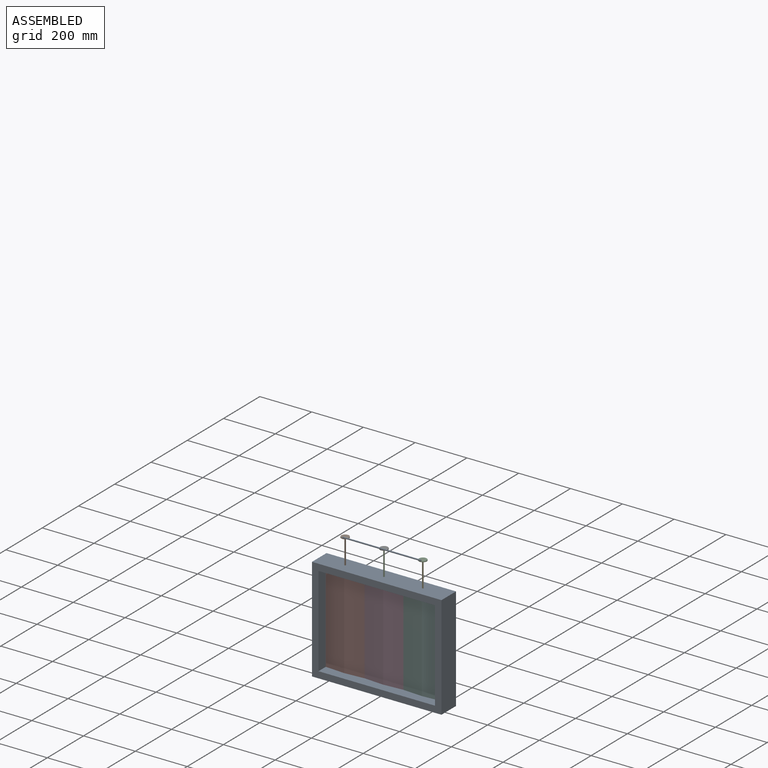
[diagram: assembled view]
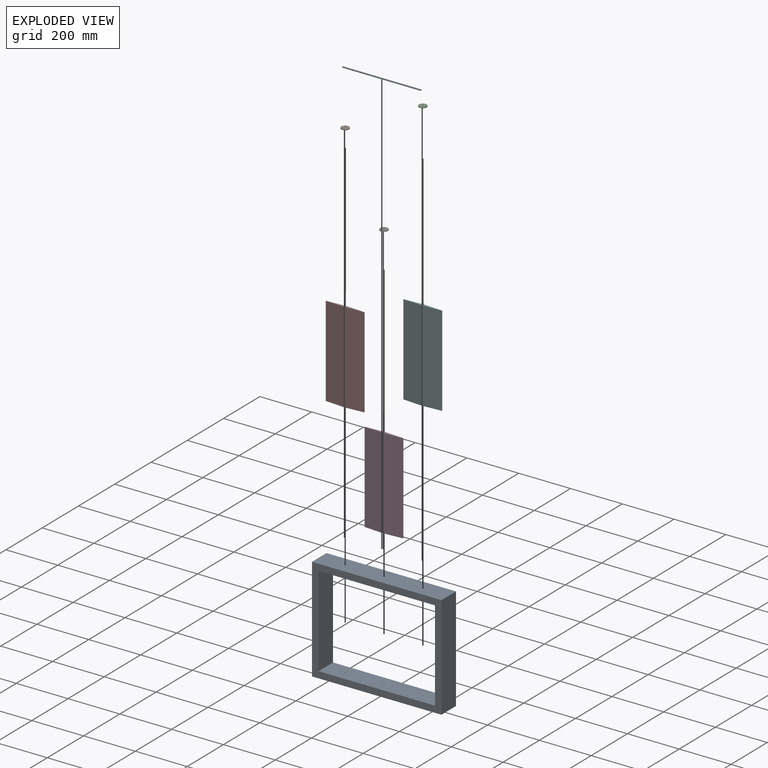
[diagram: exploded view]
GUIDED TOUR — MATED ASSEMBLY (Onshape document 1341ab26a09030945b98d55c, AutoMate assembly 1341ab26a09030945b98d55c_95baaf1af59255f4ea2139c7_4343c16ea8c97ab689f0fde2_default)

This assembly has 11 components, labeled P0..P10 below (a component is one placed occurrence of a part; the same part can appear more than once), held together by 12 mates. A mate is a constraint between two components; its type names the relative motion it leaves free:
  CYLINDRICAL — leaves both rotation about and translation along the listed axis free,
  PARALLEL — keeps the two listed directions parallel.
Axis/direction vectors are unit vectors and 'through' points are millimeter coordinates, both in the assembly's world frame.

MATES
  1. CYLINDRICAL "圓柱 1": P9 <-> P8, axis (0.000, 0.000, -1.000) through (-149.79, -0.07, 49.72) mm
  2. CYLINDRICAL "圓柱 7": P2 <-> P4, axis (0.000, 0.000, 1.000) through (150.21, -0.07, 299.72) mm
  3. CYLINDRICAL "圓柱 11": P0 <-> P2, axis (0.000, 0.000, -1.000) through (150.21, -12.07, 299.72) mm
  4. CYLINDRICAL "圓柱 2": P7 <-> P8, axis (0.000, 0.000, 1.000) through (-149.79, -0.07, -175.28) mm
  5. CYLINDRICAL "圓柱 10": P0 <-> P2, axis (0.000, 0.000, -1.000) through (150.21, -12.07, 299.72) mm
  6. CYLINDRICAL "圓柱 3": P10 <-> P8, axis (0.000, 0.000, -1.000) through (0.21, -0.07, -200.28) mm
  7. CYLINDRICAL "圓柱 9": P1 <-> P9, axis (0.000, 0.000, 1.000) through (-149.79, -0.07, 299.72) mm
  8. PARALLEL "平行 1": P9 <-> P8, direction (0.000, 0.000, -1.000) through (-149.79, -0.07, -200.28) mm
  9. CYLINDRICAL "圓柱 4": P4 <-> P8, axis (0.000, 0.000, -1.000) through (150.21, -0.07, -200.28) mm
  10. CYLINDRICAL "圓柱 8": P6 <-> P10, axis (0.000, 0.000, 1.000) through (0.21, -0.07, 299.72) mm
  11. CYLINDRICAL "圓柱 5": P3 <-> P8, axis (0.000, 0.000, -1.000) through (0.21, -0.07, -175.28) mm
  12. CYLINDRICAL "圓柱 6": P5 <-> P8, axis (0.000, 0.000, -1.000) through (150.21, -0.07, -175.28) mm

ASSEMBLY ORDER
  1. P8 — the base component [order heuristic]
  2. P3 — core [order heuristic]
  3. P4 — core [order heuristic]
  4. P5 — core [order heuristic]
  5. P7 — core [order heuristic]
  6. P9 — core [order heuristic]
  7. P10 — core [order heuristic]
  8. P6 [order verified]
  9. P2 [order verified]
  10. P1 [order verified]
  11. P0 [order verified]
Order-tag legend:
  [order verified] — this step's position reverses a verified removal order: the component was checked to insert without passing through the ones already placed.
  [order heuristic] — the first 7 components form the assembly's core: parts whose collision-free extraction could not be verified, listed in mate-graph order.

Of the 11 components, 11 carry the full construction recipe — the FeatureScript program that regenerates the part's solid from scratch; the rest are supplied as boundary geometry only.
Each toured component is shown spotlighted twice — in the assembled view, then in the exploded view, where a leader line traces a displaced component back to its assembled socket (saturated green if recipe-attached, orange if geometry-only; every other component desaturated gray) — followed by its recipe or geometry summary and the mates that hold it.
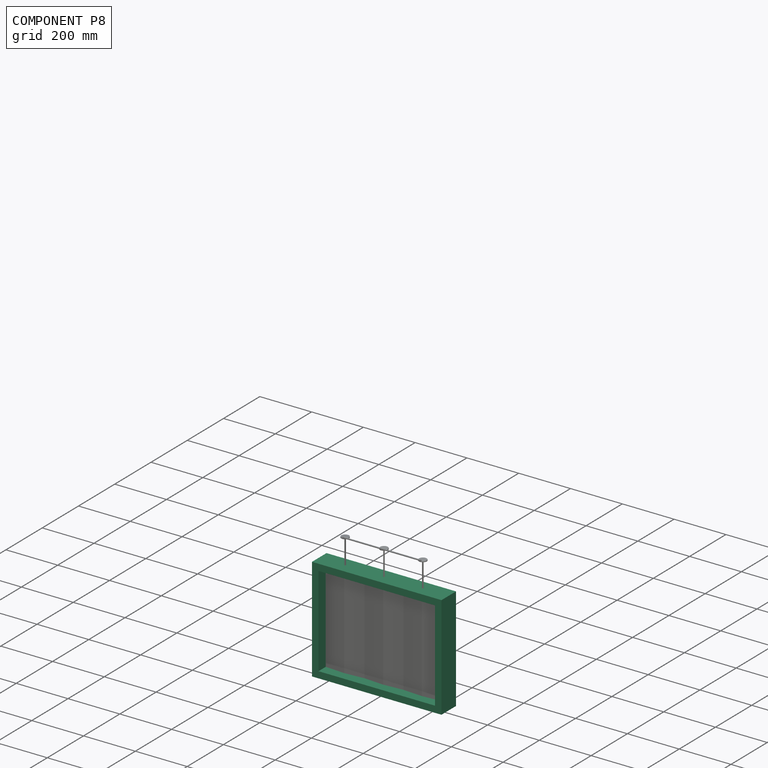
[diagram: component P8 — assembled]
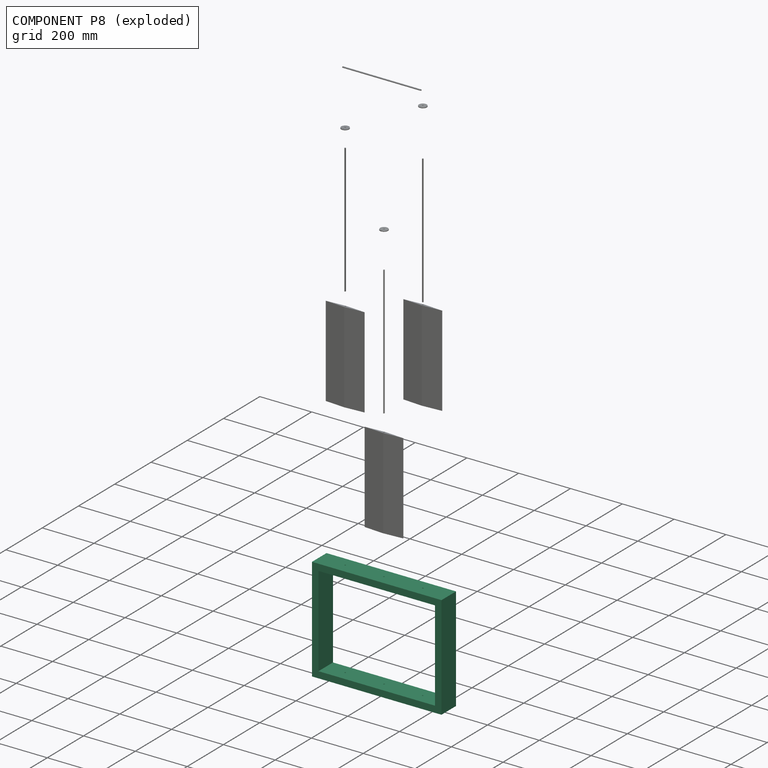
[diagram: component P8 — exploded]
COMPONENT P8 — recipe-attached (CADFS 00878262, mesh-verified: the recipe's output STEP matches this component's geometry to below the mesh-comparison resolution (tessellation chordal tolerance ~0.968 mm)).
Held by: CYLINDRICAL mate "圓柱 1" to P9; CYLINDRICAL mate "圓柱 2" to P7; CYLINDRICAL mate "圓柱 3" to P10; PARALLEL mate "平行 1" to P9; CYLINDRICAL mate "圓柱 4" to P4; CYLINDRICAL mate "圓柱 5" to P3; CYLINDRICAL mate "圓柱 6" to P5.
Construction recipe (FeatureScript — the CAD program that rebuilds this solid; sketch coordinates are in the units given by the * unit suffixes, e.g. mm):

FeatureScript 1511;
import(path : "onshape/std/geometry.fs", version : "1511.0");
import(path : "onshape/std/common.fs", version : "1511.0");
const mm = millimeter;
const VERTEX = EntityType.VERTEX;
const EDGE = EntityType.EDGE;
const FACE = EntityType.FACE;
const BODY = EntityType.BODY;
function v(x, y){return vector(x, y);}
function OD(order){return orderDisambiguation(order);}
function OSD(set){return originalSetDisambiguation(set);}
function TD(topology){return topologyDisambiguation(topology);}
function TDD(query){return trueDependencyDisambiguation(query);}
function sQuery(a, b, c) {return sketchEntityQuery(a, b, c);}

annotation { "Feature Type Name" : "Feature", "Feature Type Description" : "" }
export const myFeature = defineFeature(function(context is Context, id is Id, definition is map)
    precondition{}
    {
        {
            var Q0;
            Q0=qCreatedBy(makeId("Front.planeOp"),FACE);
            var sketch = newSketch(context, id + "F0", { "sketchPlane" : qUnion([Q0])});
            skLineSegment(sketch, "E0.bottom", {"start": v(250, 200) * mm, "end": v(-250, 200) * mm});
            skLineSegment(sketch, "E0.top", {"start": v(250, -200) * mm, "end": v(-250, -200) * mm});
            skLineSegment(sketch, "E0.left", {"start": v(250, 200) * mm, "end": v(250, -200) * mm});
            skLineSegment(sketch, "E0.right", {"start": v(-250, 200) * mm, "end": v(-250, -200) * mm});
            skPoint(sketch, "E0.middle", {"position": v(0, 0) * mm});
            skSolve(sketch);
        }
        {
            var Q0;
            Q0 = qSketchRegion(id + "F0", true);
            extrude(context, id + "F1", {"entities" : qUnion([Q0]), "depth" : 80 * mm, "offsetDistance" : 25 * mm});
        }
        {
            var Q0;
            Q0=makeQuery(id+"F1.opExtrude","CAP_FACE",FACE,{"disambiguationData":[OSD([sQuery(id+"F0.wireOp",EDGE,"E0.bottom"),sQuery(id+"F0.wireOp",EDGE,"E0.top"),sQuery(id+"F0.wireOp",EDGE,"E0.left"),sQuery(id+"F0.wireOp",EDGE,"E0.right")])],"isStart":false});
            var sketch = newSketch(context, id + "F2", { "sketchPlane" : qUnion([Q0])});
            skLineSegment(sketch, "E1.bottom", {"start": v(225, 175) * mm, "end": v(-225, 175) * mm});
            skLineSegment(sketch, "E1.top", {"start": v(225, -175) * mm, "end": v(-225, -175) * mm});
            skLineSegment(sketch, "E1.left", {"start": v(225, 175) * mm, "end": v(225, -175) * mm});
            skLineSegment(sketch, "E1.right", {"start": v(-225, 175) * mm, "end": v(-225, -175) * mm});
            skPoint(sketch, "E1.middle", {"position": v(0, 0) * mm});
            skSolve(sketch);
        }
        {
            var Q0;
            Q0 = qSketchRegion(id + "F2", true);
            extrude(context, id + "F3", {"entities" : qUnion([Q0]), "operationType" : NewBodyOperationType.REMOVE, "endBound" : BoundingType.UP_TO_NEXT, "oppositeDirection" : true, "depth" : 25 * mm, "offsetDistance" : 25 * mm});
        }
        {
            var Q0;
            Q0=makeQuery(id+"F1.opExtrude","SWEPT_FACE",FACE,{"disambiguationData":[OSD([sQuery(id+"F0.wireOp",EDGE,"E0.bottom")])]});
            var sketch = newSketch(context, id + "F4", { "sketchPlane" : qUnion([Q0])});
            skCircle(sketch, "E2", {"center": v(-150, -40) * mm, "radius": 2.5 * mm});
            skPoint(sketch, "E2.centerSnap0", {"position": v(-250, -40) * mm});
            skCircle(sketch, "E3", {"center": v(0, -40) * mm, "radius": 2.5 * mm});
            skCircle(sketch, "E4", {"center": v(150, -40) * mm, "radius": 2.5 * mm});
            skSolve(sketch);
        }
        {
            var Q0;
            Q0 = qSketchRegion(id + "F4", true);
            extrude(context, id + "F5", {"entities" : qUnion([Q0]), "operationType" : NewBodyOperationType.REMOVE, "endBound" : BoundingType.THROUGH_ALL, "oppositeDirection" : true, "depth" : 25 * mm, "offsetDistance" : 25 * mm});
        }
    });
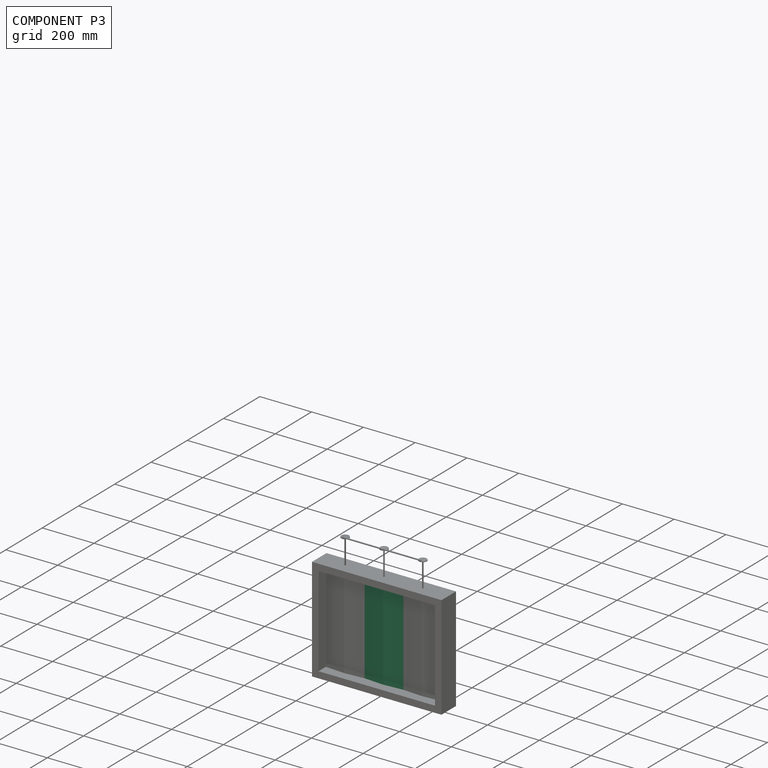
[diagram: component P3 — assembled]
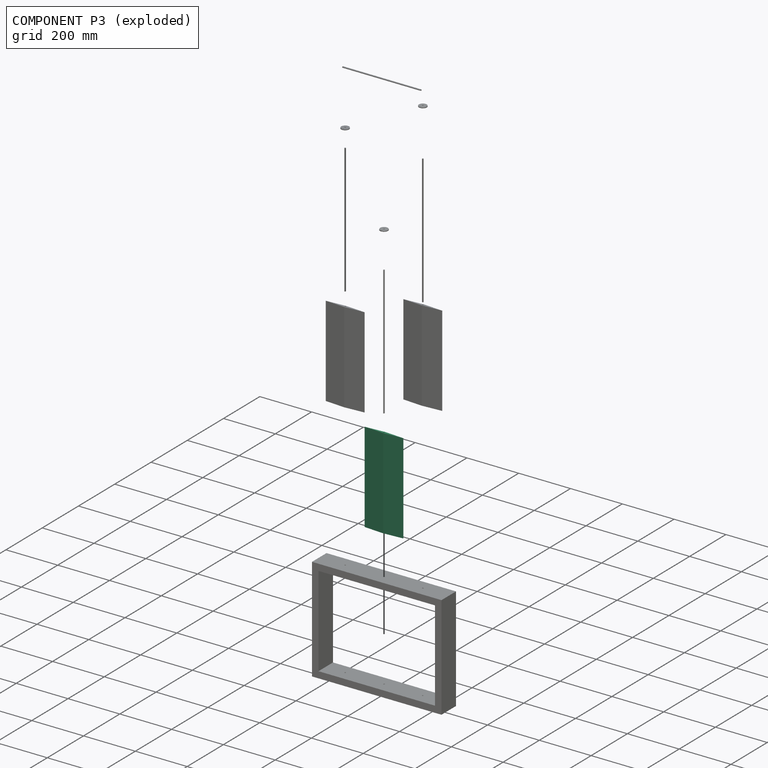
[diagram: component P3 — exploded]
COMPONENT P3 — recipe-attached (CADFS 00878314, mesh-verified: the recipe's output STEP matches this component's geometry to below the mesh-comparison resolution (tessellation chordal tolerance ~0.571 mm)).
Held by: CYLINDRICAL mate "圓柱 5" to P8.
Construction recipe (FeatureScript — the CAD program that rebuilds this solid; sketch coordinates are in the units given by the * unit suffixes, e.g. mm):

FeatureScript 1511;
import(path : "onshape/std/geometry.fs", version : "1511.0");
import(path : "onshape/std/common.fs", version : "1511.0");
const mm = millimeter;
const VERTEX = EntityType.VERTEX;
const EDGE = EntityType.EDGE;
const FACE = EntityType.FACE;
const BODY = EntityType.BODY;
function v(x, y){return vector(x, y);}
function OD(order){return orderDisambiguation(order);}
function OSD(set){return originalSetDisambiguation(set);}
function TD(topology){return topologyDisambiguation(topology);}
function TDD(query){return trueDependencyDisambiguation(query);}
function sQuery(a, b, c) {return sketchEntityQuery(a, b, c);}

annotation { "Feature Type Name" : "Feature", "Feature Type Description" : "" }
export const myFeature = defineFeature(function(context is Context, id is Id, definition is map)
    precondition{}
    {
        {
            var Q0;
            Q0=qCreatedBy(makeId("Top.planeOp"),FACE);
            var sketch = newSketch(context, id + "F0", { "sketchPlane" : qUnion([Q0])});
            skLineSegment(sketch, "E0", {"start": v(0, 5) * mm, "end": v(-75, 0) * mm});
            skLineSegment(sketch, "E1.MirrorCS", {"start": v(0, -5) * mm, "end": v(-75, 0) * mm});
            skLineSegment(sketch, "E2.MirrorCS", {"start": v(0, 5) * mm, "end": v(75, 0) * mm});
            skLineSegment(sketch, "E3.MirrorCS", {"start": v(0, -5) * mm, "end": v(75, 0) * mm});
            skSolve(sketch);
        }
        {
            var Q0;
            Q0 = qSketchRegion(id + "F0", true);
            extrude(context, id + "F1", {"entities" : qUnion([Q0]), "endBound" : BoundingType.SYMMETRIC, "depth" : 350 * mm, "offsetDistance" : 25 * mm});
        }
        {
            var Q0;
            Q0=makeQuery(id+"F1.opExtrude","CAP_FACE",FACE,{"disambiguationData":[OSD([sQuery(id+"F0.wireOp",EDGE,"E0"),sQuery(id+"F0.wireOp",EDGE,"E1.MirrorCS"),sQuery(id+"F0.wireOp",EDGE,"E2.MirrorCS"),sQuery(id+"F0.wireOp",EDGE,"E3.MirrorCS")])],"isStart":false});
            var sketch = newSketch(context, id + "F2", { "sketchPlane" : qUnion([Q0])});
            skCircle(sketch, "E4", {"center": v(0, 0) * mm, "radius": 2.5 * mm});
            skSolve(sketch);
        }
        {
            var Q0;
            Q0 = qSketchRegion(id + "F2", true);
            extrude(context, id + "F3", {"entities" : qUnion([Q0]), "operationType" : NewBodyOperationType.REMOVE, "endBound" : BoundingType.UP_TO_NEXT, "oppositeDirection" : true, "depth" : 25 * mm, "offsetDistance" : 25 * mm});
        }
    });
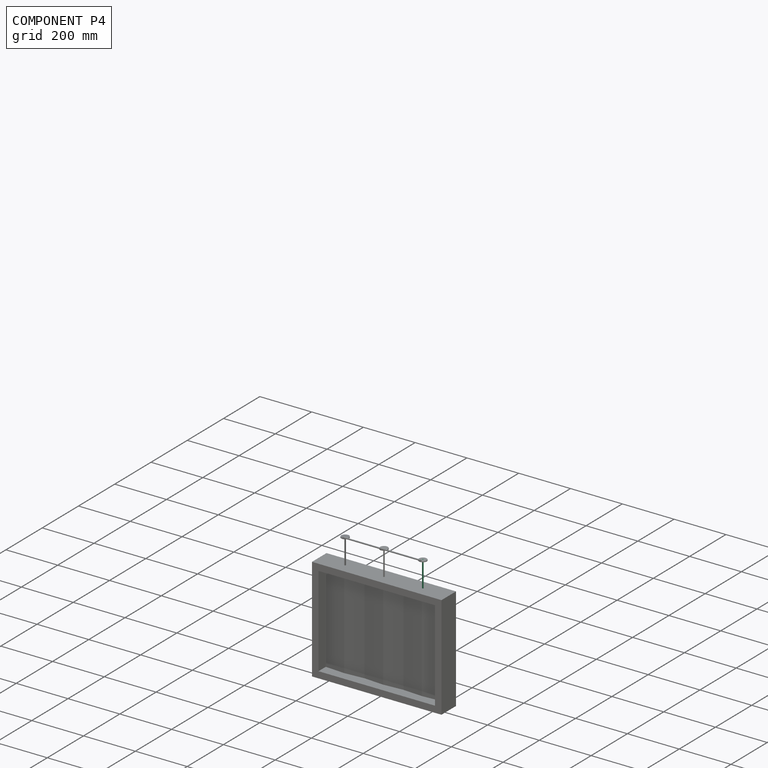
[diagram: component P4 — assembled]
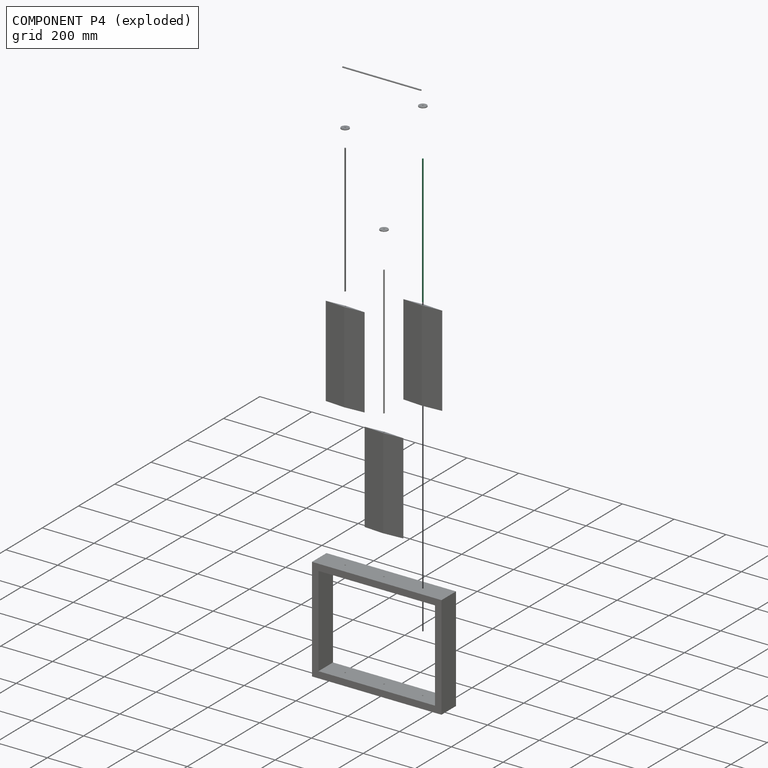
[diagram: component P4 — exploded]
COMPONENT P4 — recipe-attached (CADFS 00878274, mesh-verified: the recipe's output STEP matches this component's geometry to below the mesh-comparison resolution (tessellation chordal tolerance ~0.75 mm)).
Held by: CYLINDRICAL mate "圓柱 7" to P2; CYLINDRICAL mate "圓柱 4" to P8.
Construction recipe (FeatureScript — the CAD program that rebuilds this solid; sketch coordinates are in the units given by the * unit suffixes, e.g. mm):

FeatureScript 1511;
import(path : "onshape/std/geometry.fs", version : "1511.0");
import(path : "onshape/std/common.fs", version : "1511.0");
const mm = millimeter;
const VERTEX = EntityType.VERTEX;
const EDGE = EntityType.EDGE;
const FACE = EntityType.FACE;
const BODY = EntityType.BODY;
function v(x, y){return vector(x, y);}
function OD(order){return orderDisambiguation(order);}
function OSD(set){return originalSetDisambiguation(set);}
function TD(topology){return topologyDisambiguation(topology);}
function TDD(query){return trueDependencyDisambiguation(query);}
function sQuery(a, b, c) {return sketchEntityQuery(a, b, c);}

annotation { "Feature Type Name" : "Feature", "Feature Type Description" : "" }
export const myFeature = defineFeature(function(context is Context, id is Id, definition is map)
    precondition{}
    {
        {
            var Q0;
            Q0=qCreatedBy(makeId("Top.planeOp"),FACE);
            var sketch = newSketch(context, id + "F0", { "sketchPlane" : qUnion([Q0])});
            skCircle(sketch, "E0", {"center": v(0, 0) * mm, "radius": 2.5 * mm});
            skSolve(sketch);
        }
        {
            var Q0;
            Q0 = qSketchRegion(id + "F0", true);
            extrude(context, id + "F1", {"entities" : qUnion([Q0]), "endBound" : BoundingType.SYMMETRIC, "depth" : 500 * mm, "offsetDistance" : 25 * mm});
        }
    });
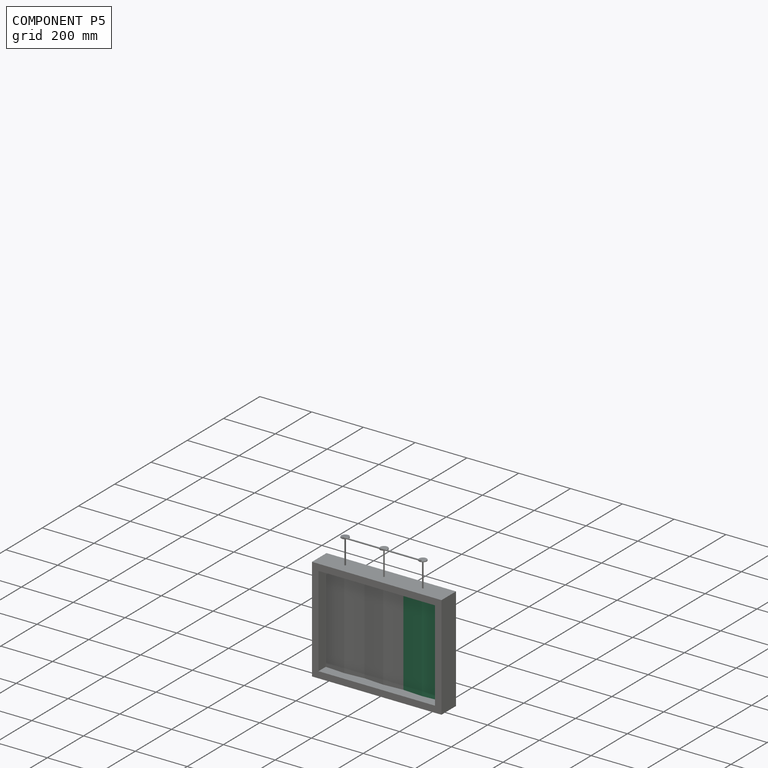
[diagram: component P5 — assembled]
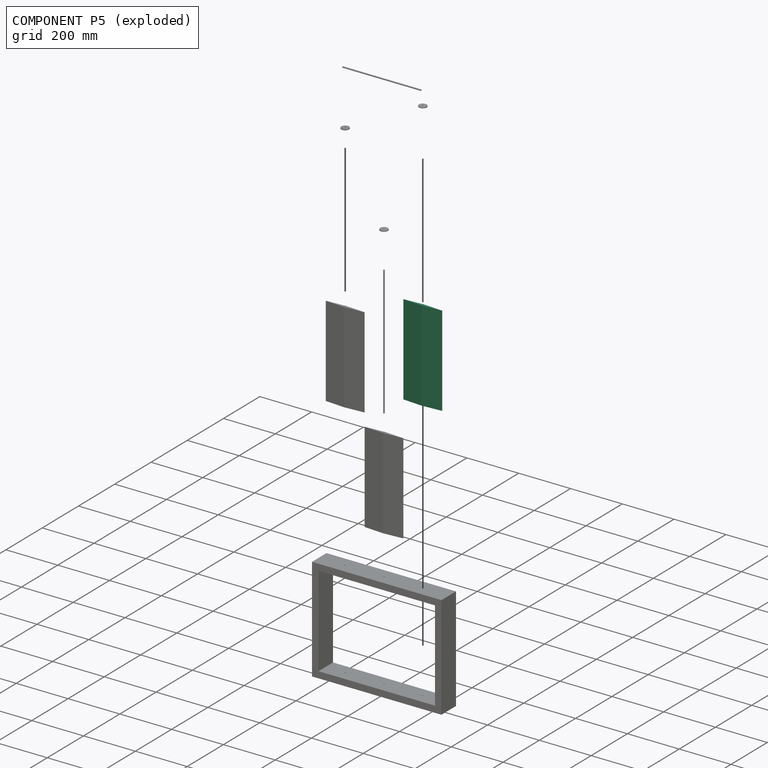
[diagram: component P5 — exploded]
COMPONENT P5 — same part as P3 (CADFS 00878314); its construction recipe is shown at P3.
Held by: CYLINDRICAL mate "圓柱 6" to P8.
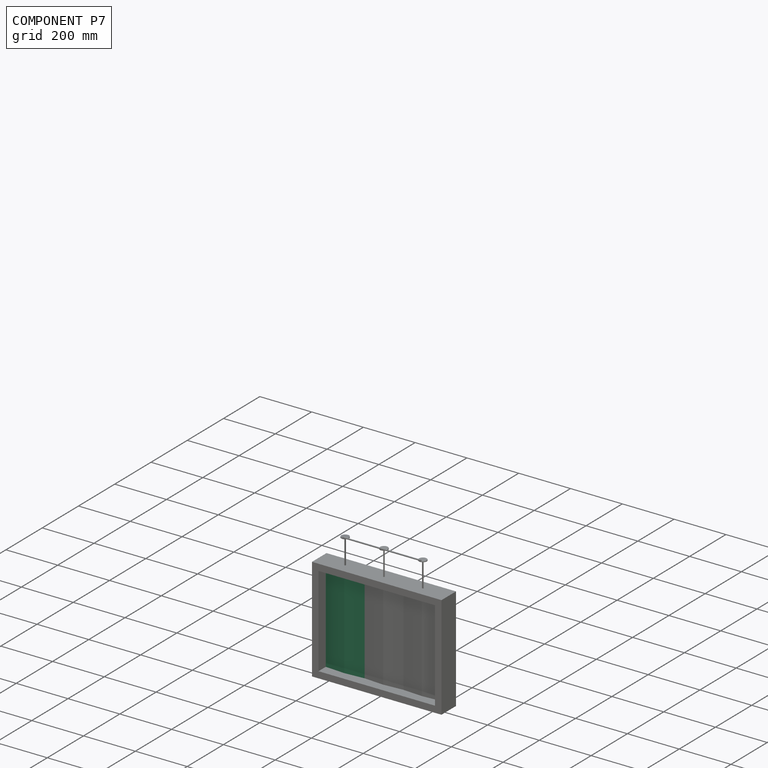
[diagram: component P7 — assembled]
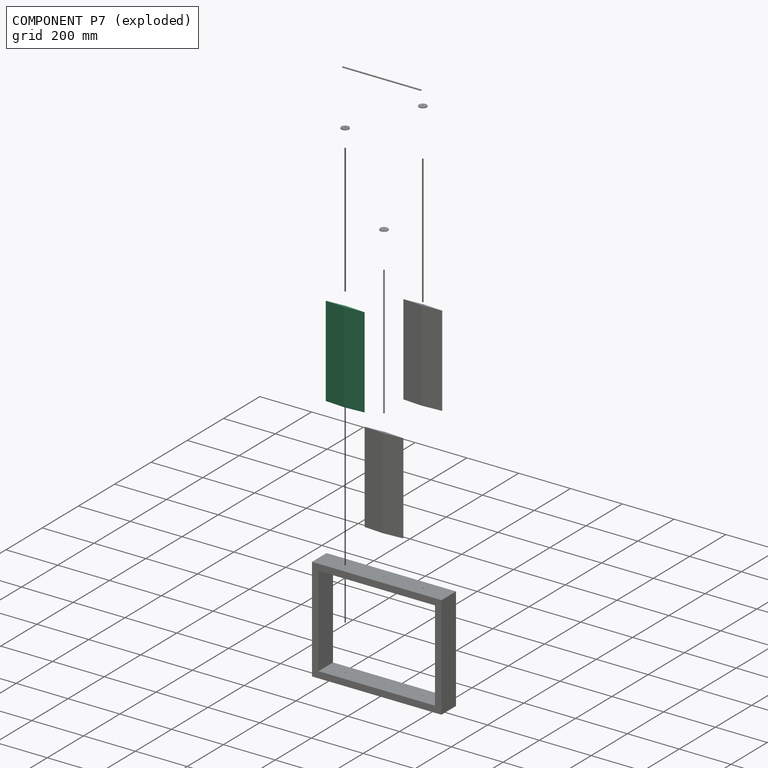
[diagram: component P7 — exploded]
COMPONENT P7 — same part as P3 (CADFS 00878314); its construction recipe is shown at P3.
Held by: CYLINDRICAL mate "圓柱 2" to P8.
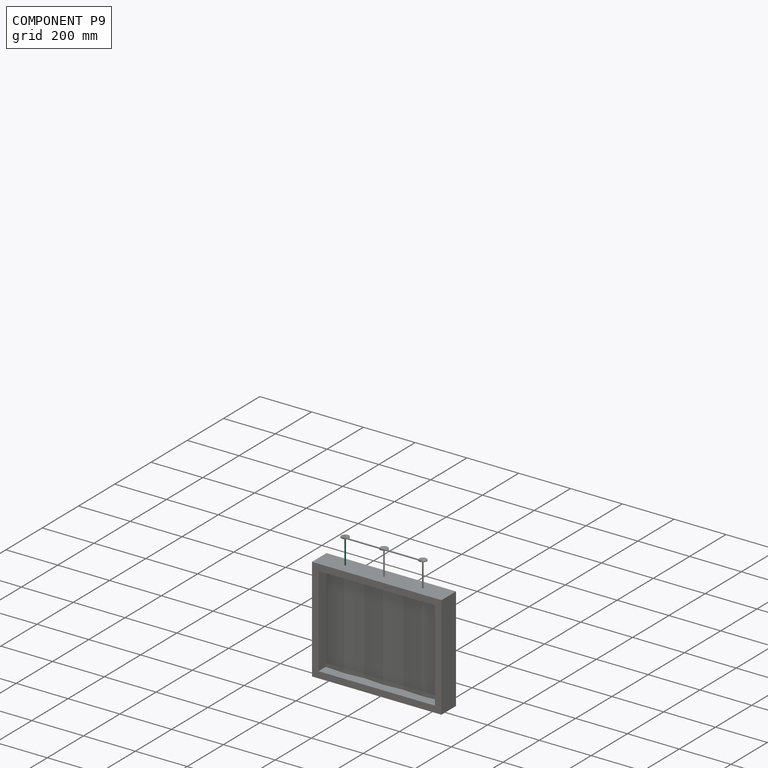
[diagram: component P9 — assembled]
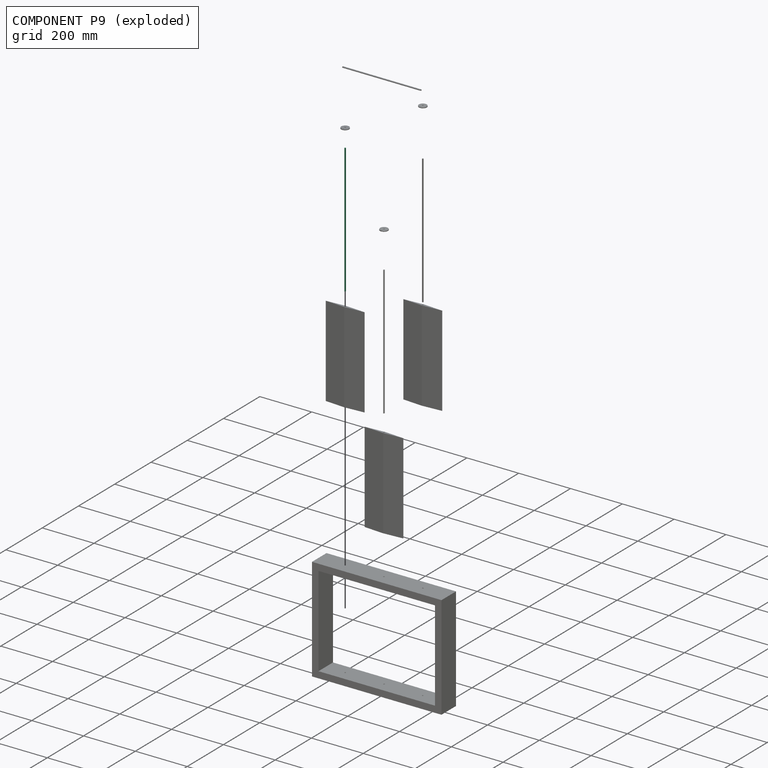
[diagram: component P9 — exploded]
COMPONENT P9 — same part as P4 (CADFS 00878274); its construction recipe is shown at P4.
Held by: CYLINDRICAL mate "圓柱 1" to P8; CYLINDRICAL mate "圓柱 9" to P1; PARALLEL mate "平行 1" to P8.
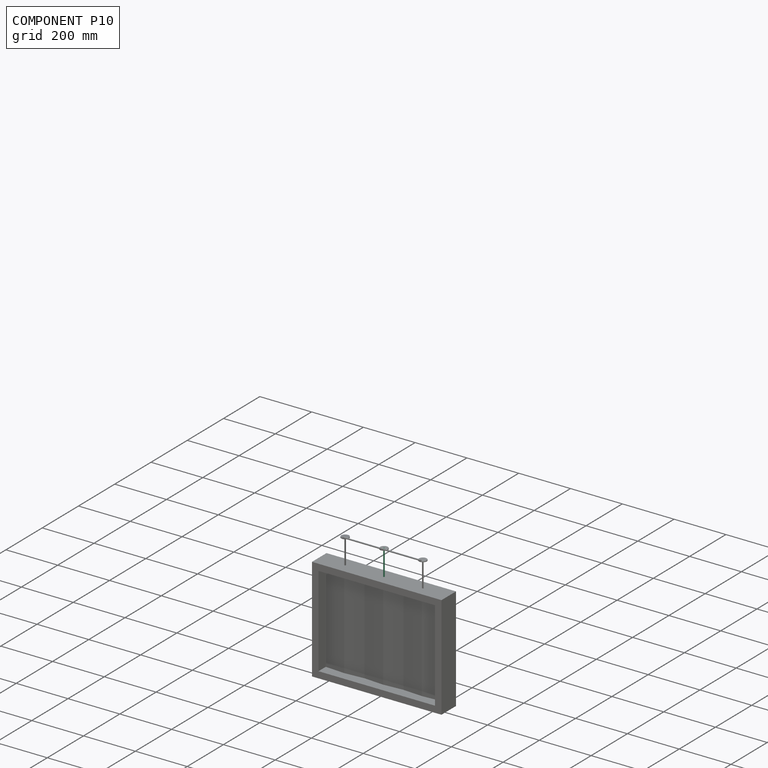
[diagram: component P10 — assembled]
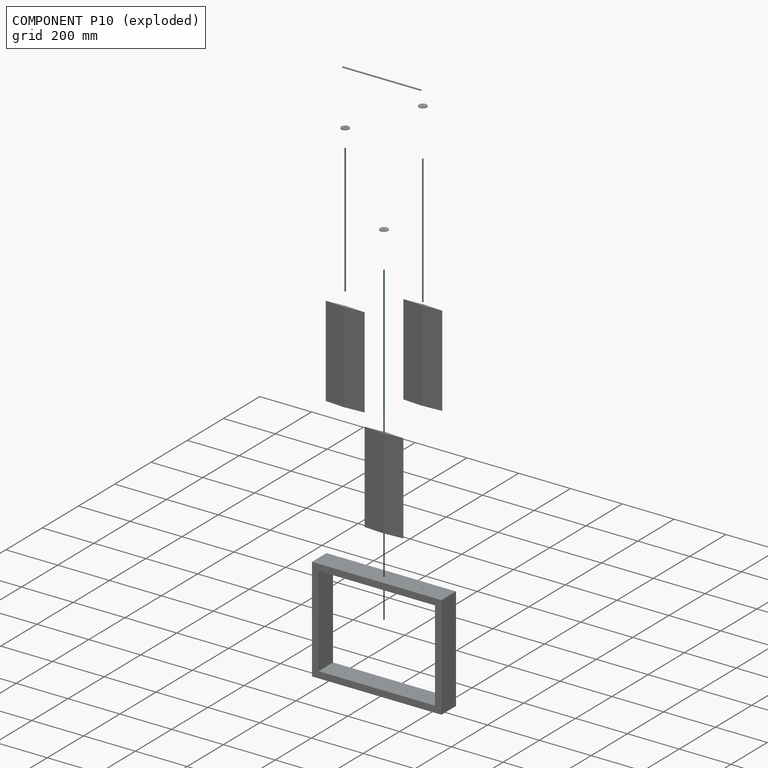
[diagram: component P10 — exploded]
COMPONENT P10 — same part as P4 (CADFS 00878274); its construction recipe is shown at P4.
Held by: CYLINDRICAL mate "圓柱 3" to P8; CYLINDRICAL mate "圓柱 8" to P6.
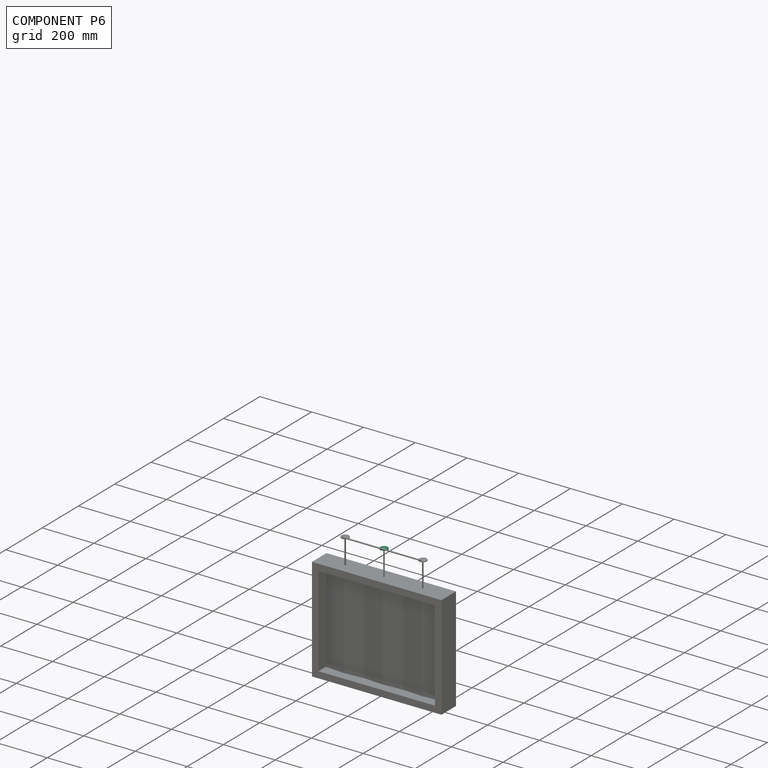
[diagram: component P6 — assembled]
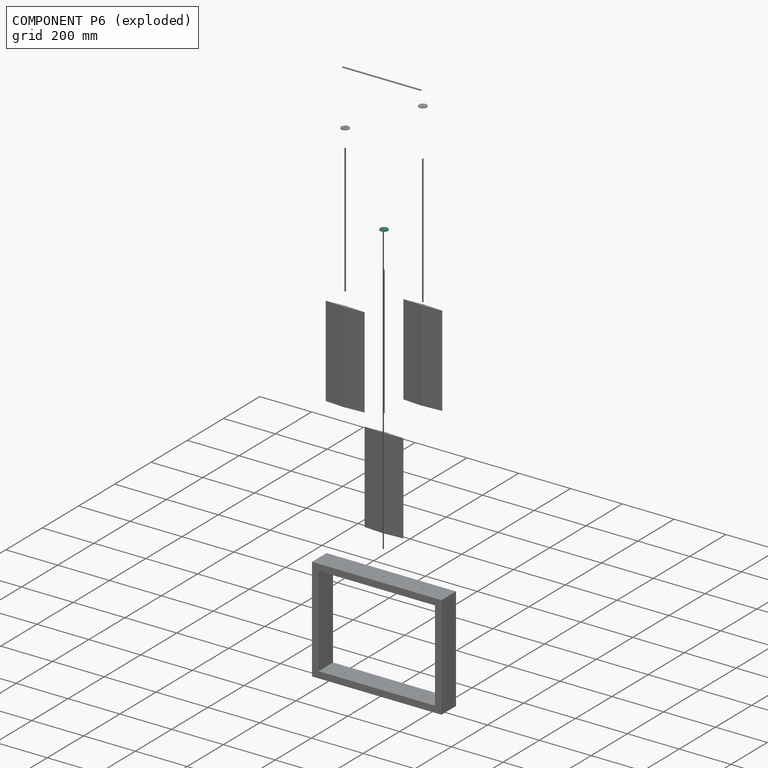
[diagram: component P6 — exploded]
COMPONENT P6 — same part as P1 (CADFS 00878276); its construction recipe is shown at P1.
Held by: CYLINDRICAL mate "圓柱 8" to P10.
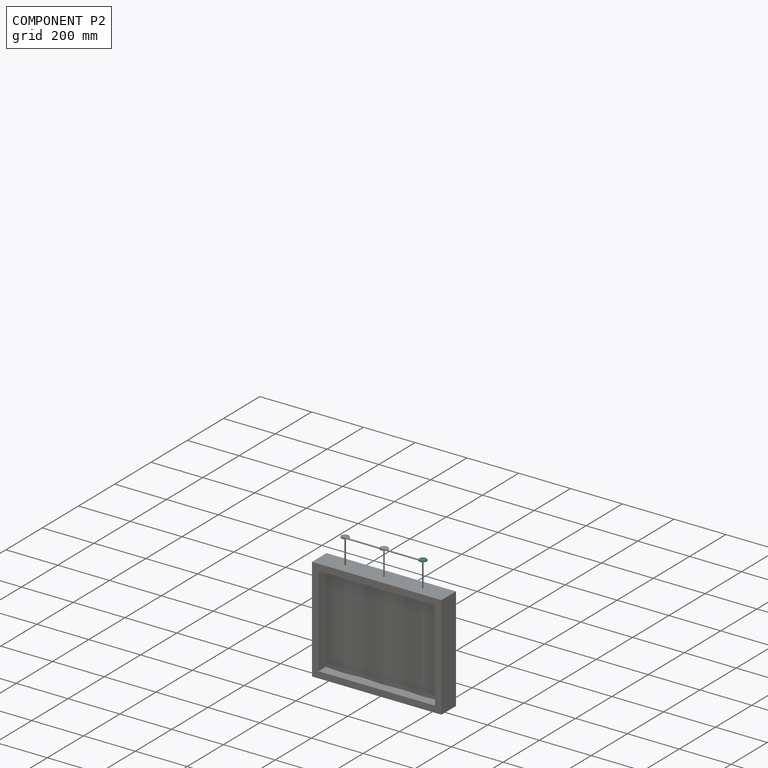
[diagram: component P2 — assembled]
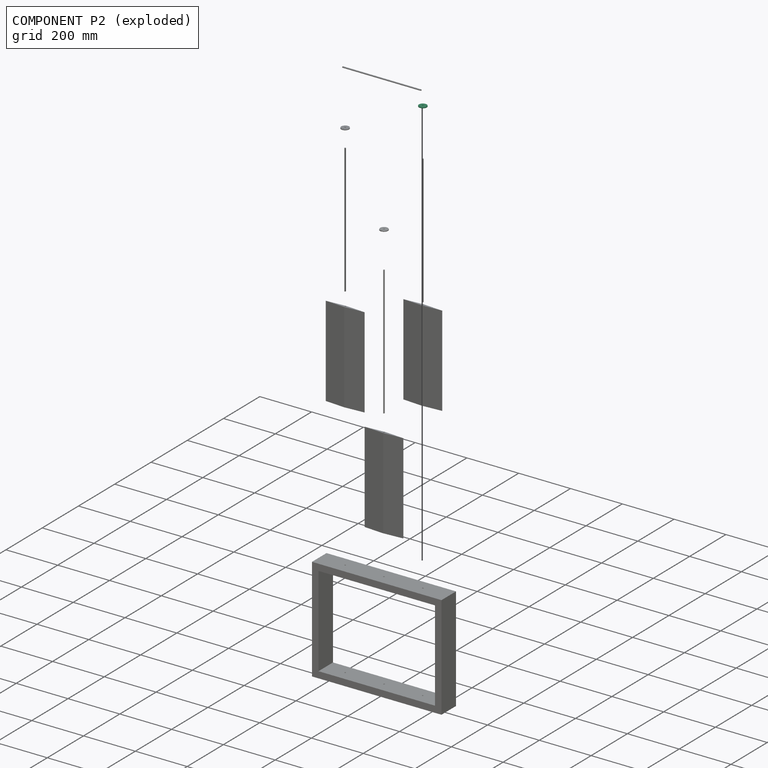
[diagram: component P2 — exploded]
COMPONENT P2 — same part as P1 (CADFS 00878276); its construction recipe is shown at P1.
Held by: CYLINDRICAL mate "圓柱 7" to P4; CYLINDRICAL mate "圓柱 11" to P0; CYLINDRICAL mate "圓柱 10" to P0.
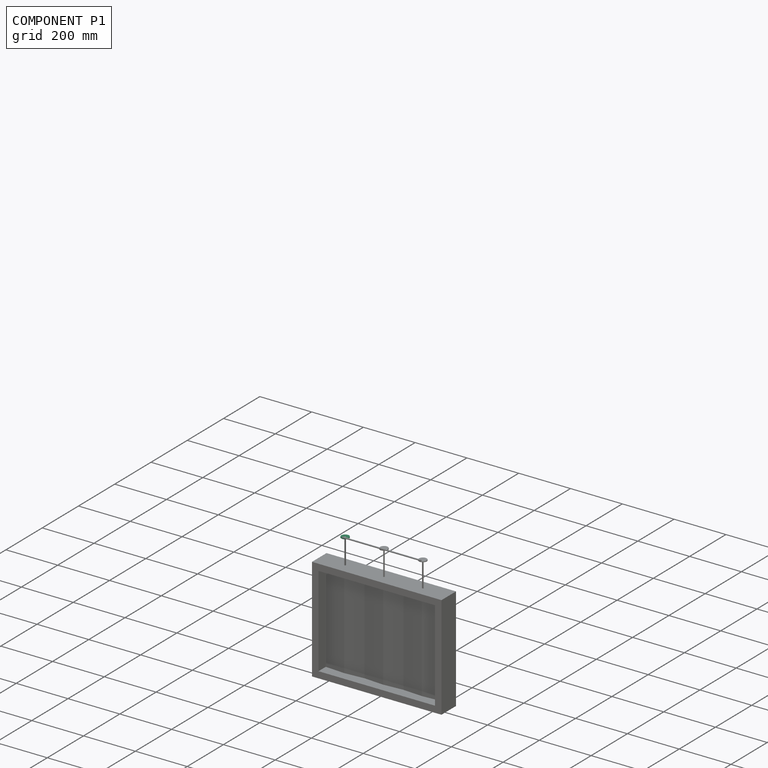
[diagram: component P1 — assembled]
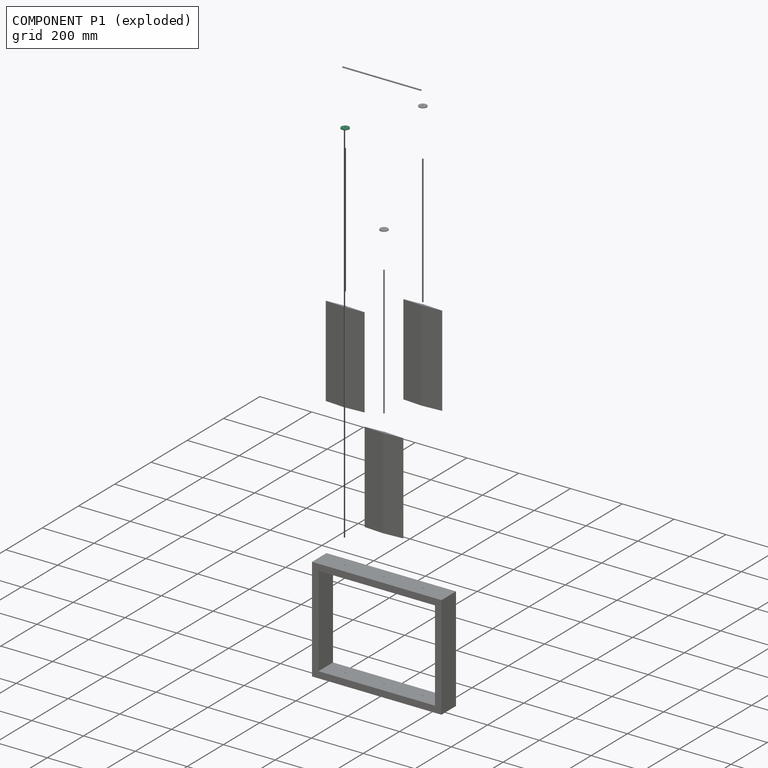
[diagram: component P1 — exploded]
COMPONENT P1 — recipe-attached (CADFS 00878276, mesh-verified: the recipe's output STEP matches this component's geometry to below the mesh-comparison resolution (tessellation chordal tolerance ~0.0637 mm)).
Held by: CYLINDRICAL mate "圓柱 9" to P9.
Construction recipe (FeatureScript — the CAD program that rebuilds this solid; sketch coordinates are in the units given by the * unit suffixes, e.g. mm):

FeatureScript 1511;
import(path : "onshape/std/geometry.fs", version : "1511.0");
import(path : "onshape/std/common.fs", version : "1511.0");
const mm = millimeter;
const VERTEX = EntityType.VERTEX;
const EDGE = EntityType.EDGE;
const FACE = EntityType.FACE;
const BODY = EntityType.BODY;
function v(x, y){return vector(x, y);}
function OD(order){return orderDisambiguation(order);}
function OSD(set){return originalSetDisambiguation(set);}
function TD(topology){return topologyDisambiguation(topology);}
function TDD(query){return trueDependencyDisambiguation(query);}
function sQuery(a, b, c) {return sketchEntityQuery(a, b, c);}

annotation { "Feature Type Name" : "Feature", "Feature Type Description" : "" }
export const myFeature = defineFeature(function(context is Context, id is Id, definition is map)
    precondition{}
    {
        {
            var Q0;
            Q0=qCreatedBy(makeId("Front.planeOp"),FACE);
            var sketch = newSketch(context, id + "F0", { "sketchPlane" : qUnion([Q0])});
            skCircle(sketch, "E0", {"center": v(0, 0) * mm, "radius": 15 * mm});
            skSolve(sketch);
        }
        {
            var Q0;
            Q0 = qSketchRegion(id + "F0", true);
            extrude(context, id + "F1", {"entities" : qUnion([Q0]), "depth" : 3 * mm, "offsetDistance" : 25 * mm});
        }
        {
            var Q0;
            Q0=makeQuery(id+"F1.opExtrude","CAP_FACE",FACE,{"disambiguationData":[OSD([sQuery(id+"F0.wireOp",EDGE,"E0")])],"isStart":false});
            var sketch = newSketch(context, id + "F2", { "sketchPlane" : qUnion([Q0])});
            skCircle(sketch, "E1", {"center": v(0, 12) * mm, "radius": 1.5 * mm});
            skSolve(sketch);
        }
        {
            var Q0;
            Q0 = qSketchRegion(id + "F2", true);
            extrude(context, id + "F3", {"entities" : qUnion([Q0]), "operationType" : NewBodyOperationType.REMOVE, "endBound" : BoundingType.UP_TO_NEXT, "oppositeDirection" : true, "depth" : 25 * mm, "offsetDistance" : 25 * mm});
        }
        {
            var Q0;
            Q0=makeQuery(id+"F1.opExtrude","CAP_FACE",FACE,{"disambiguationData":[OSD([sQuery(id+"F0.wireOp",EDGE,"E0")])],"isStart":false});
            var sketch = newSketch(context, id + "F4", { "sketchPlane" : qUnion([Q0])});
            skCircle(sketch, "E2", {"center": v(0, 0) * mm, "radius": 2.5 * mm});
            skSolve(sketch);
        }
        {
            var Q0;
            Q0 = qSketchRegion(id + "F4", true);
            extrude(context, id + "F5", {"entities" : qUnion([Q0]), "operationType" : NewBodyOperationType.REMOVE, "endBound" : BoundingType.UP_TO_NEXT, "oppositeDirection" : true, "depth" : 25 * mm, "offsetDistance" : 25 * mm});
        }
    });
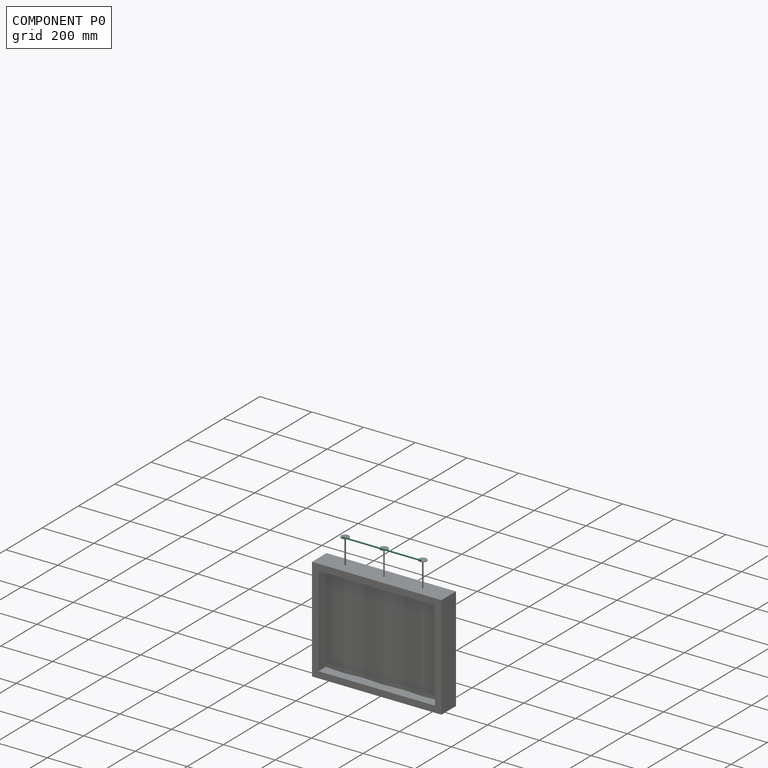
[diagram: component P0 — assembled]
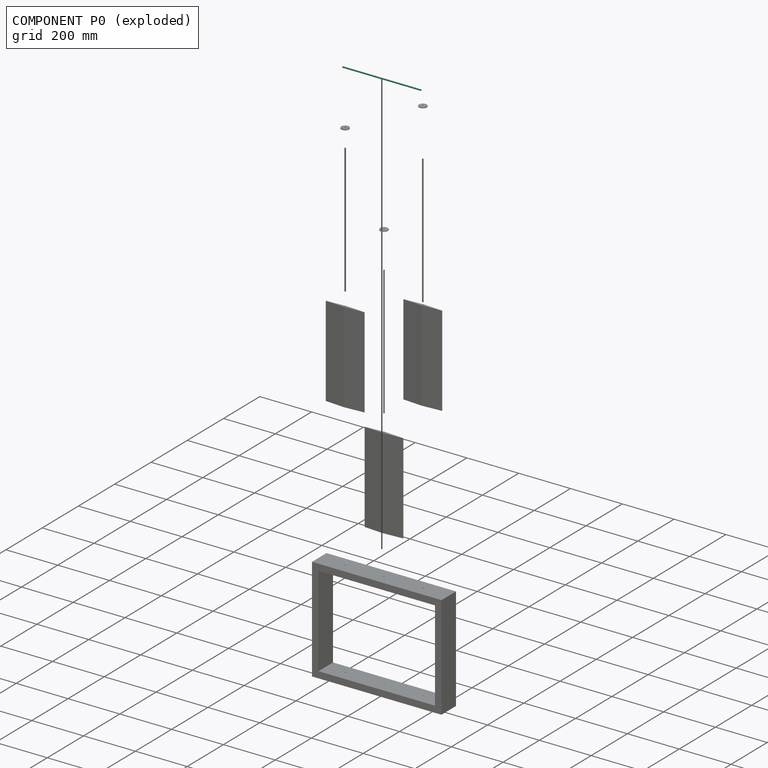
[diagram: component P0 — exploded]
COMPONENT P0 — recipe-attached (CADFS 00878283, mesh-verified: the recipe's output STEP matches this component's geometry to below the mesh-comparison resolution (tessellation chordal tolerance ~0.458 mm)).
Held by: CYLINDRICAL mate "圓柱 11" to P2; CYLINDRICAL mate "圓柱 10" to P2.
Construction recipe (FeatureScript — the CAD program that rebuilds this solid; sketch coordinates are in the units given by the * unit suffixes, e.g. mm):

FeatureScript 1511;
import(path : "onshape/std/geometry.fs", version : "1511.0");
import(path : "onshape/std/common.fs", version : "1511.0");
const mm = millimeter;
const VERTEX = EntityType.VERTEX;
const EDGE = EntityType.EDGE;
const FACE = EntityType.FACE;
const BODY = EntityType.BODY;
function v(x, y){return vector(x, y);}
function OD(order){return orderDisambiguation(order);}
function OSD(set){return originalSetDisambiguation(set);}
function TD(topology){return topologyDisambiguation(topology);}
function TDD(query){return trueDependencyDisambiguation(query);}
function sQuery(a, b, c) {return sketchEntityQuery(a, b, c);}

annotation { "Feature Type Name" : "Feature", "Feature Type Description" : "" }
export const myFeature = defineFeature(function(context is Context, id is Id, definition is map)
    precondition{}
    {
        {
            var Q0;
            Q0=qCreatedBy(makeId("Front.planeOp"),FACE);
            var sketch = newSketch(context, id + "F0", { "sketchPlane" : qUnion([Q0])});
            skArc(sketch, "E0", {"start": v(2.5, 259.04) * mm, "mid": v(0, 261.54) * mm, "end": v(-2.5, 259.04) * mm});
            skArc(sketch, "E1", {"start": v(-2.5, -40.96) * mm, "mid": v(0, -43.46) * mm, "end": v(2.5, -40.96) * mm});
            skLineSegment(sketch, "E2", {"start": v(-2.5, 259.04) * mm, "end": v(-2.5, -40.96) * mm});
            skLineSegment(sketch, "E3", {"start": v(2.5, -40.96) * mm, "end": v(2.5, 259.04) * mm});
            skSolve(sketch);
        }
        {
            var Q0;
            Q0 = qSketchRegion(id + "F0", true);
            extrude(context, id + "F1", {"entities" : qUnion([Q0]), "depth" : 3 * mm, "offsetDistance" : 25 * mm});
        }
        {
            var Q0;
            Q0=makeQuery(id+"F1.opExtrude","CAP_FACE",FACE,{"disambiguationData":[OSD([sQuery(id+"F0.wireOp",EDGE,"E0"),sQuery(id+"F0.wireOp",EDGE,"E1"),sQuery(id+"F0.wireOp",EDGE,"E2"),sQuery(id+"F0.wireOp",EDGE,"E3")])],"isStart":false});
            var sketch = newSketch(context, id + "F2", { "sketchPlane" : qUnion([Q0])});
            skCircle(sketch, "E4", {"center": v(0, 259.04) * mm, "radius": 1.5 * mm});
            skCircle(sketch, "E5", {"center": v(0, -40.96) * mm, "radius": 1.5 * mm});
            skSolve(sketch);
        }
        {
            var Q0;
            Q0 = qSketchRegion(id + "F2", true);
            extrude(context, id + "F3", {"entities" : qUnion([Q0]), "operationType" : NewBodyOperationType.REMOVE, "endBound" : BoundingType.UP_TO_NEXT, "oppositeDirection" : true, "depth" : 25 * mm, "offsetDistance" : 25 * mm});
        }
    });
PROVENANCE & LICENSES
Assembly (occurrences, transforms, mates, per-part STEP geometry): AutoMate dataset, Zenodo record 7776208, CC0.
Construction recipes: CADFS (HuggingFace VladPyatov/CADFS, CC-BY-4.0, layered over the ABC dataset), FeatureScript reconstruction programs keyed by ABC model id.
Join: ABC meta listings map ABC model id -> Onshape documentId; within a shared document, parts are matched by geometric signature (bounding-box dims + volume at 0.1% relative tolerance, exact B-rep face/solid counts).
Verification: 11 of this assembly's 11 components carry a recipe attachment, and every attachment is mesh-verified: the CADFS STEP and the AutoMate member STEP were compared as meshes in their shared local frame (symmetric sampled-point-to-mesh distance); worst across the 11 attachments: below the mesh-comparison resolution (tessellation chordal tolerance ~0.968 mm) on a 645 mm part.
Renders: orthographic iso camera (az 35 / el 25); the floor grid conveys scale (grid pitch printed in each image; no ruler). In the exploded view each component is displaced by its stored offset vector: the offsets alone carry the explosion direction (mate normal/axis signs are not orientation cues and do not encode it), and separation distances are assigned per mate-chain, not proportionally to assembly-order depth.
